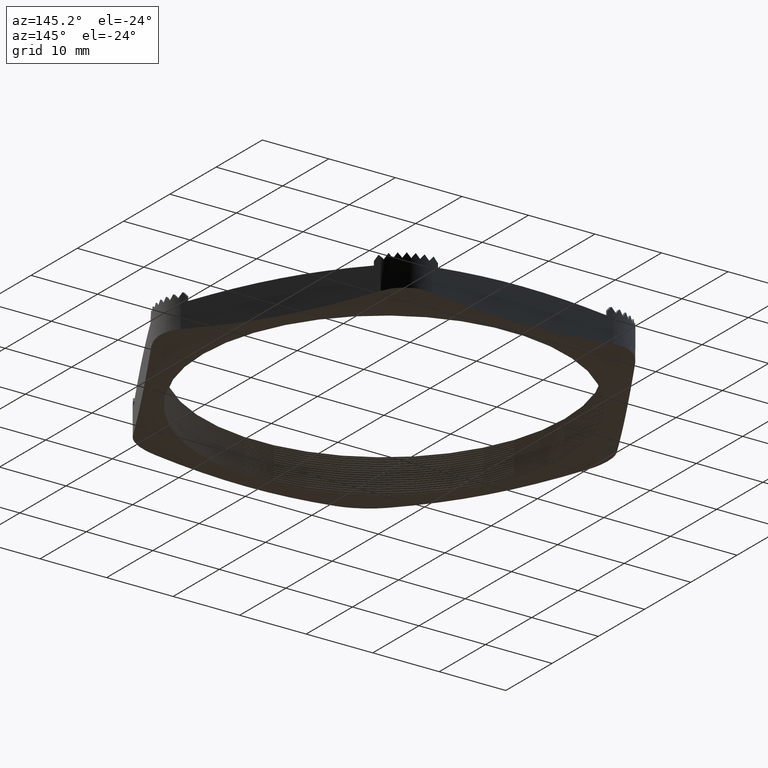
[diagram: clean part render]
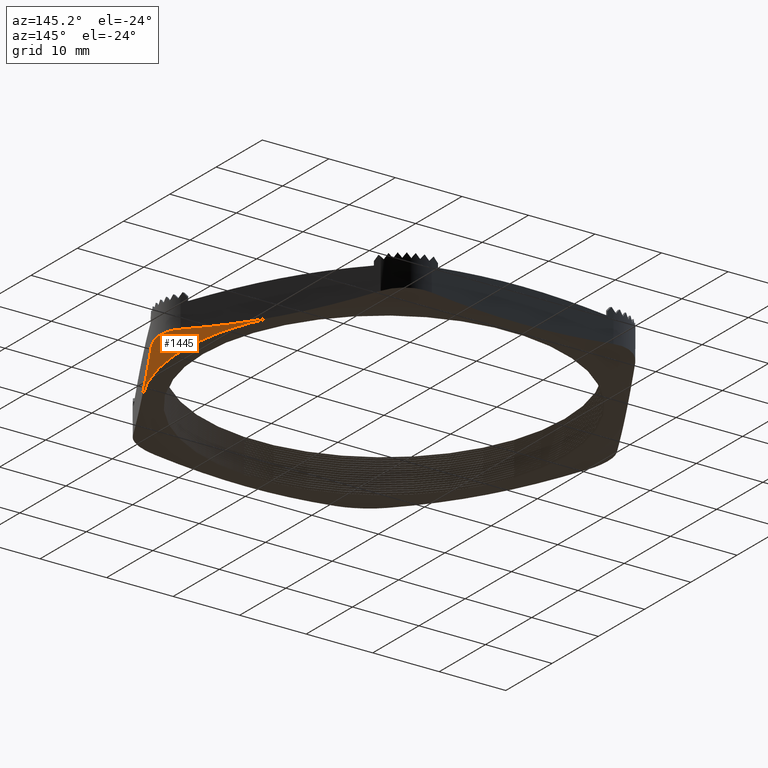
[diagram: same view with one face highlighted and labeled with its STEP entity id]
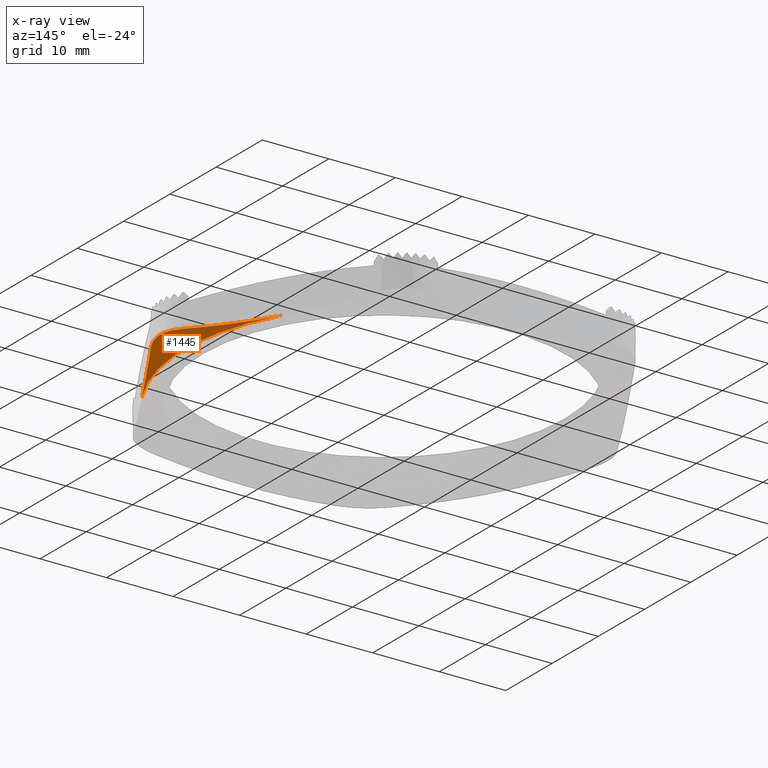
[diagram: x-ray of the same camera — body ghosted, the highlighted face saturated]
A machine part, auxiliary view. The second image highlights one B-rep face of the part: STEP entity #1445.
The next image is the same camera in x-ray: the body ghosted, the highlighted face saturated — about 0% of this face is hidden behind the body in this view.
In plain terms, the highlighted conical surface has half-angle 75 deg.
Its self-contained STEP definition (entity closure, byte-faithful):
#749 = VERTEX_POINT ( 'NONE', #4127 ) ;
#751 = EDGE_CURVE ( 'NONE', #752, #749, #4120, .T. ) ;
#752 = VERTEX_POINT ( 'NONE', #4118 ) ;
#810 = VERTEX_POINT ( 'NONE', #4260 ) ;
#812 = EDGE_CURVE ( 'NONE', #813, #810, #4259, .T. ) ;
#813 = VERTEX_POINT ( 'NONE', #4258 ) ;
#971 = EDGE_CURVE ( 'NONE', #752, #810, #4600, .T. ) ;
#1122 = EDGE_CURVE ( 'NONE', #813, #749, #4917, .T. ) ;
#1445 = ADVANCED_FACE ( 'NONE', ( #5489 ), #5484, .T. ) ;
#1446 = EDGE_LOOP ( 'NONE', ( #1500, #1501, #1502, #1503 ) ) ;
#1500 = ORIENTED_EDGE ( 'NONE', *, *, #751, .T. ) ;
#1501 = ORIENTED_EDGE ( 'NONE', *, *, #1122, .F. ) ;
#1502 = ORIENTED_EDGE ( 'NONE', *, *, #812, .T. ) ;
#1503 = ORIENTED_EDGE ( 'NONE', *, *, #971, .F. ) ;
#4118 = CARTESIAN_POINT ( 'NONE',  ( 1.290377851638813800, -0.1249999999999999200, 0.03119414724621202500 ) ) ;
#4120 = B_SPLINE_CURVE_WITH_KNOTS ( 'NONE', 3,
 ( #4168, #4167, #4166, #4165, #4164, #4163 ),
 .UNSPECIFIED., .F., .F.,
 ( 4, 2, 4 ),
 ( 2.309401076763871900E-007, 0.006819314969506351900, 0.01363839899890502400 ),
 .UNSPECIFIED. ) ;
#4127 = CARTESIAN_POINT ( 'NONE',  ( 1.021909976465637900, -0.5900000000000004100, 0.0000000000000000000 ) ) ;
#4163 = CARTESIAN_POINT ( 'NONE',  ( 1.021909976465637900, -0.5900000000000004100, 0.0000000000000000000 ) ) ;
#4164 = CARTESIAN_POINT ( 'NONE',  ( 1.066654622327833700, -0.5125000000000001800, -5.282284206499259500E-017 ) ) ;
#4165 = CARTESIAN_POINT ( 'NONE',  ( 1.111399268190029800, -0.4349999999999998900, 0.002760444505509550400 ) ) ;
#4166 = CARTESIAN_POINT ( 'NONE',  ( 1.200888559914421900, -0.2799999999999999700, 0.01339954382873618400 ) ) ;
#4167 = CARTESIAN_POINT ( 'NONE',  ( 1.245633205776617700, -0.2025000000000000100, 0.02126296973872446300 ) ) ;
#4168 = CARTESIAN_POINT ( 'NONE',  ( 1.290377851638813800, -0.1249999999999999200, 0.03119414724621202500 ) ) ;
#4258 = CARTESIAN_POINT ( 'NONE',  ( 1.021909976465638300, 0.5900000000000004100, 0.0000000000000000000 ) ) ;
#4259 = B_SPLINE_CURVE_WITH_KNOTS ( 'NONE', 3,
 ( #4315, #4314, #4313, #4312, #4311, #4310 ),
 .UNSPECIFIED., .F., .F.,
 ( 4, 2, 4 ),
 ( 0.01363839899890501000, 0.02045748302830368400, 0.02727656705770235500 ),
 .UNSPECIFIED. ) ;
#4260 = CARTESIAN_POINT ( 'NONE',  ( 1.290377851638813800, 0.1250000000000000600, 0.03119414724621204200 ) ) ;
#4310 = CARTESIAN_POINT ( 'NONE',  ( 1.290377851638813800, 0.1250000000000000600, 0.03119414724621204200 ) ) ;
#4311 = CARTESIAN_POINT ( 'NONE',  ( 1.245633205776617700, 0.2025000000000001000, 0.02126296973872446000 ) ) ;
#4312 = CARTESIAN_POINT ( 'NONE',  ( 1.200888559914421900, 0.2800000000000000300, 0.01339954382873619900 ) ) ;
#4313 = CARTESIAN_POINT ( 'NONE',  ( 1.111399268190030000, 0.4350000000000002200, 0.002760444505509573800 ) ) ;
#4314 = CARTESIAN_POINT ( 'NONE',  ( 1.066654622327833700, 0.5125000000000001800, -1.067128122525103100E-017 ) ) ;
#4315 = CARTESIAN_POINT ( 'NONE',  ( 1.021909976465638300, 0.5900000000000004100, 0.0000000000000000000 ) ) ;
#4598 = CARTESIAN_POINT ( 'NONE',  ( 1.290377851638813800, -0.1249999999999999200, 0.03119414724621202500 ) ) ;
#4600 = B_SPLINE_CURVE_WITH_KNOTS ( 'NONE', 3,
 ( #4598, #4636, #4635, #4634, #4633, #4632, #4631, #4630, #4629, #4628, #4627, #4626, #4625, #4624 ),
 .UNSPECIFIED., .F., .F.,
 ( 4, 2, 2, 2, 2, 2, 4 ),
 ( 2.290954377990677700E-007, 0.001657467496944173000, 0.002486086697697360200, 0.003314705898450547300, 0.004971944299956921100, 0.005800563500710108700, 0.006629182701463295400 ),
 .UNSPECIFIED. ) ;
#4624 = CARTESIAN_POINT ( 'NONE',  ( 1.290377851638813800, 0.1250000000000000600, 0.03119414724621204200 ) ) ;
#4625 = CARTESIAN_POINT ( 'NONE',  ( 1.295858997182038500, 0.1155063774354550400, 0.03241070016076141900 ) ) ;
#4626 = CARTESIAN_POINT ( 'NONE',  ( 1.300719191967518300, 0.1056340365549711100, 0.03348309538666061800 ) ) ;
#4627 = CARTESIAN_POINT ( 'NONE',  ( 1.309040105984407000, 0.08552281450446849700, 0.03531306315505809000 ) ) ;
#4628 = CARTESIAN_POINT ( 'NONE',  ( 1.312526305427845500, 0.07524616348516835500, 0.03607628434309020200 ) ) ;
#4629 = CARTESIAN_POINT ( 'NONE',  ( 1.320970237628164500, 0.04375634781972940300, 0.03792123859619875300 ) ) ;
#4630 = CARTESIAN_POINT ( 'NONE',  ( 1.323880188490399500, 0.02165343884050841700, 0.03855214071423575300 ) ) ;
#4631 = CARTESIAN_POINT ( 'NONE',  ( 1.323867126749560800, -0.01097683011741867700, 0.03854930174945986300 ) ) ;
#4632 = CARTESIAN_POINT ( 'NONE',  ( 1.323156003213140400, -0.02183324295491628800, 0.03839484144053803600 ) ) ;
#4633 = CARTESIAN_POINT ( 'NONE',  ( 1.320299558832428400, -0.04350477969458798500, 0.03777317717666130200 ) ) ;
#4634 = CARTESIAN_POINT ( 'NONE',  ( 1.318130865790899700, -0.05437247084770269900, 0.03730086706087829700 ) ) ;
#4635 = CARTESIAN_POINT ( 'NONE',  ( 1.309634105063445500, -0.08597677871004035000, 0.03544432138599382100 ) ) ;
#4636 = CARTESIAN_POINT ( 'NONE',  ( 1.301339763910655400, -0.1060134109970571600, 0.03362716899653346600 ) ) ;
#4913 = DIRECTION ( 'NONE',  ( -1.000000000000000000, 0.0000000000000000000, 0.0000000000000000000 ) ) ;
#4914 = DIRECTION ( 'NONE',  ( 0.0000000000000000000, 0.0000000000000000000, -1.000000000000000000 ) ) ;
#4915 = CARTESIAN_POINT ( 'NONE',  ( 0.0000000000000000000, 0.0000000000000000000, 0.0000000000000000000 ) ) ;
#4916 = AXIS2_PLACEMENT_3D ( 'NONE', #4915, #4914, #4913 ) ;
#4917 = CIRCLE ( 'NONE', #4916, 1.180000000000000200 ) ;
#5479 = DIRECTION ( 'NONE',  ( -1.000000000000000000, 0.0000000000000000000, 0.0000000000000000000 ) ) ;
#5480 = DIRECTION ( 'NONE',  ( 0.0000000000000000000, 0.0000000000000000000, 1.000000000000000000 ) ) ;
#5481 = CARTESIAN_POINT ( 'NONE',  ( 0.0000000000000000000, 0.0000000000000000000, 0.0000000000000000000 ) ) ;
#5482 = AXIS2_PLACEMENT_3D ( 'NONE', #5481, #5480, #5479 ) ;
#5484 = CONICAL_SURFACE ( 'NONE', #5482, 1.180000000000000200, 1.308996938995750100 ) ;
#5489 = FACE_OUTER_BOUND ( 'NONE', #1446, .T. ) ;